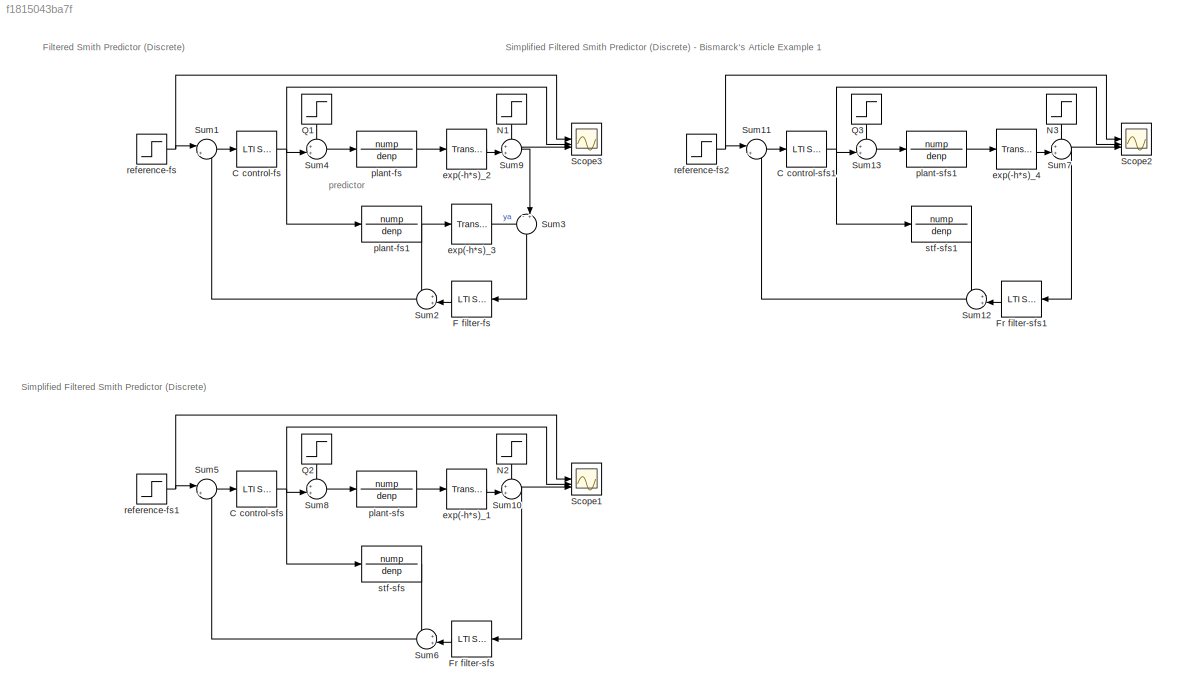
MODEL slx_f1815043ba7f
KIND model
CONFIG AbsTol = auto
CONFIG EnableMultiTasking = off
CONFIG FixedStep = auto
CONFIG MaxStep = auto
CONFIG MinStep = auto
CONFIG RelTol = 1e-3
CONFIG SampleTimeConstraint = Unconstrained
CONFIG SolverName = VariableStepAuto
CONFIG StartTime = 0.0
CONFIG StopTime = 10.0
BLOCK [Reference] C control-fs  REF=cstblocks/LTI System
  SourceBlock = cstblocks/LTI System
  SourceType = LTI Block
BLOCK [Reference] C control-sfs  REF=cstblocks/LTI System
  SourceBlock = cstblocks/LTI System
  SourceType = LTI Block
BLOCK [Reference] C control-sfs1  REF=cstblocks/LTI System
  SourceBlock = cstblocks/LTI System
  SourceType = LTI Block
BLOCK [Reference] F filter-fs  REF=cstblocks/LTI System
  NameLocation = top
  SourceBlock = cstblocks/LTI System
  SourceType = LTI Block
BLOCK [Reference] Fr filter-sfs  REF=cstblocks/LTI System
  NameLocation = top
  SourceBlock = cstblocks/LTI System
  SourceType = LTI Block
BLOCK [Reference] Fr filter-sfs1  REF=cstblocks/LTI System
  NameLocation = top
  SourceBlock = cstblocks/LTI System
  SourceType = LTI Block
BLOCK [Step] N1
  After = 0.2
  NameLocation = right
  SampleTime = 0
  Time = 25
BLOCK [Step] N2
  After = 0.2
  NameLocation = right
  SampleTime = 0
  Time = 25
BLOCK [Step] N3
  After = 0.2
  NameLocation = right
  SampleTime = 0
  Time = 25
BLOCK [Step] Q1
  NameLocation = right
  SampleTime = 0
  Time = 12
BLOCK [Step] Q2
  NameLocation = right
  SampleTime = 0
  Time = 12
BLOCK [Step] Q3
  NameLocation = right
  SampleTime = 0
  Time = 12
BLOCK [Scope] Scope1
  Floating = off
  NumInputPorts = 3
  ScopeSpecificationString = Simulink.scopes.TimeScopeBlockCfg('CurrentConfiguration', extmgr.ConfigurationSet(extmgr.Configuration('Core','General UI',true),extmgr.Configuration('Core','Source UI',true),extmgr.Configuration('Sources','WiredSimulink',true,'DataLoggingVariableName','ScopeData1'),extmgr.Configuration('Visuals','Time Domain',true,'SerializedDisplays',{struct('MinYLimReal','-6.10752','MaxYLimReal','6.6075','YLabe...<+1389ch>
BLOCK [Scope] Scope2
  Floating = off
  NumInputPorts = 3
  ScopeSpecificationString = Simulink.scopes.TimeScopeBlockCfg('CurrentConfiguration', extmgr.ConfigurationSet(extmgr.Configuration('Core','General UI',true),extmgr.Configuration('Core','Source UI',true),extmgr.Configuration('Sources','WiredSimulink',true,'DataLoggingVariableName','ScopeData2'),extmgr.Configuration('Visuals','Time Domain',true,'SerializedDisplays',{struct('MinYLimReal','-6.10752','MaxYLimReal','6.6075','YLabe...<+1389ch>
BLOCK [Scope] Scope3
  Floating = off
  NumInputPorts = 3
  ScopeSpecificationString = Simulink.scopes.TimeScopeBlockCfg('CurrentConfiguration', extmgr.ConfigurationSet(extmgr.Configuration('Core','General UI',true),extmgr.Configuration('Core','Source UI',true),extmgr.Configuration('Sources','WiredSimulink',true,'DataLoggingVariableName','ScopeData2'),extmgr.Configuration('Visuals','Time Domain',true,'SerializedDisplays',{struct('MinYLimReal','-6.10752','MaxYLimReal','6.6075','YLabe...<+1389ch>
BLOCK [Sum] Sum1
  Inputs = |+-
BLOCK [Sum] Sum10
  Inputs = ++|
BLOCK [Sum] Sum11
  Inputs = |+-
BLOCK [Sum] Sum12
  Inputs = ++|
  NameLocation = top
BLOCK [Sum] Sum13
  Inputs = ++|
BLOCK [Sum] Sum2
  Inputs = ++|
  NameLocation = top
BLOCK [Sum] Sum3
  Inputs = -+|
  NameLocation = left
BLOCK [Sum] Sum4
  Inputs = ++|
BLOCK [Sum] Sum5
  Inputs = |+-
BLOCK [Sum] Sum6
  Inputs = ++|
  NameLocation = top
BLOCK [Sum] Sum7
  Inputs = ++|
BLOCK [Sum] Sum8
  Inputs = ++|
BLOCK [Sum] Sum9
  Inputs = ++|
BLOCK [TransportDelay] exp(-h*s)_1
  DelayTime = h
BLOCK [TransportDelay] exp(-h*s)_2
  DelayTime = h
BLOCK [TransportDelay] exp(-h*s)_3
  DelayTime = h
BLOCK [TransportDelay] exp(-h*s)_4
  DelayTime = h
BLOCK [TransferFcn] plant-fs
  Denominator = denp
  Numerator = nump
BLOCK [TransferFcn] plant-fs1
  Denominator = denp
  Numerator = nump
BLOCK [TransferFcn] plant-sfs
  Denominator = denp
  Numerator = nump
BLOCK [TransferFcn] plant-sfs1
  Denominator = denp
  Numerator = nump
BLOCK [Step] reference-fs
  SampleTime = 0
BLOCK [Step] reference-fs1
  SampleTime = 0
BLOCK [Step] reference-fs2
  SampleTime = 0
BLOCK [TransferFcn] stf-sfs
  Denominator = denp
  Numerator = nump
BLOCK [TransferFcn] stf-sfs1
  Denominator = denp
  Numerator = nump
ANNOTATION (root): Filtered Smith Predictor (Discrete)
ANNOTATION (root): Simplified Filtered Smith Predictor (Discrete)
ANNOTATION (root): Simplified Filtered Smith Predictor (Discrete) - Bismarck's Article Example 1
ANNOTATION (root): predictor
NET C control-fs:1 -> Scope3:2, Sum4:2, plant-fs1:1
NET C control-sfs1:1 -> Scope2:2, Sum13:2, stf-sfs1:1
NET C control-sfs:1 -> Scope1:2, Sum8:2, stf-sfs:1
LINE F filter-fs:1 -> Sum2:2
LINE Fr filter-sfs1:1 -> Sum12:2
LINE Fr filter-sfs:1 -> Sum6:2
LINE N1:1 -> Sum9:1
LINE N2:1 -> Sum10:1
LINE N3:1 -> Sum7:1
LINE Q1:1 -> Sum4:1
LINE Q2:1 -> Sum8:1
LINE Q3:1 -> Sum13:1
NET Sum10:1 -> Fr filter-sfs:1, Scope1:3
LINE Sum11:1 -> C control-sfs1:1
LINE Sum12:1 -> Sum11:2
LINE Sum13:1 -> plant-sfs1:1
LINE Sum1:1 -> C control-fs:1
LINE Sum2:1 -> Sum1:2
LINE Sum3:1 -> F filter-fs:1
LINE Sum4:1 -> plant-fs:1
LINE Sum5:1 -> C control-sfs:1
LINE Sum6:1 -> Sum5:2
NET Sum7:1 -> Fr filter-sfs1:1, Scope2:3
LINE Sum8:1 -> plant-sfs:1
NET Sum9:1 -> Scope3:3, Sum3:2
LINE exp(-h*s)_1:1 -> Sum10:2
LINE exp(-h*s)_2:1 -> Sum9:2
LINE exp(-h*s)_3:1 -> Sum3:1
LINE exp(-h*s)_4:1 -> Sum7:2
NET plant-fs1:1 -> Sum2:1, exp(-h*s)_3:1
LINE plant-fs:1 -> exp(-h*s)_2:1
LINE plant-sfs1:1 -> exp(-h*s)_4:1
LINE plant-sfs:1 -> exp(-h*s)_1:1
NET reference-fs1:1 -> Scope1:1, Sum5:1
NET reference-fs2:1 -> Scope2:1, Sum11:1
NET reference-fs:1 -> Scope3:1, Sum1:1
LINE stf-sfs1:1 -> Sum12:1
LINE stf-sfs:1 -> Sum6:1
note: NET lines group one-source signal fan-out (src -> all destinations, sorted); 1:1 wires keep LINE
